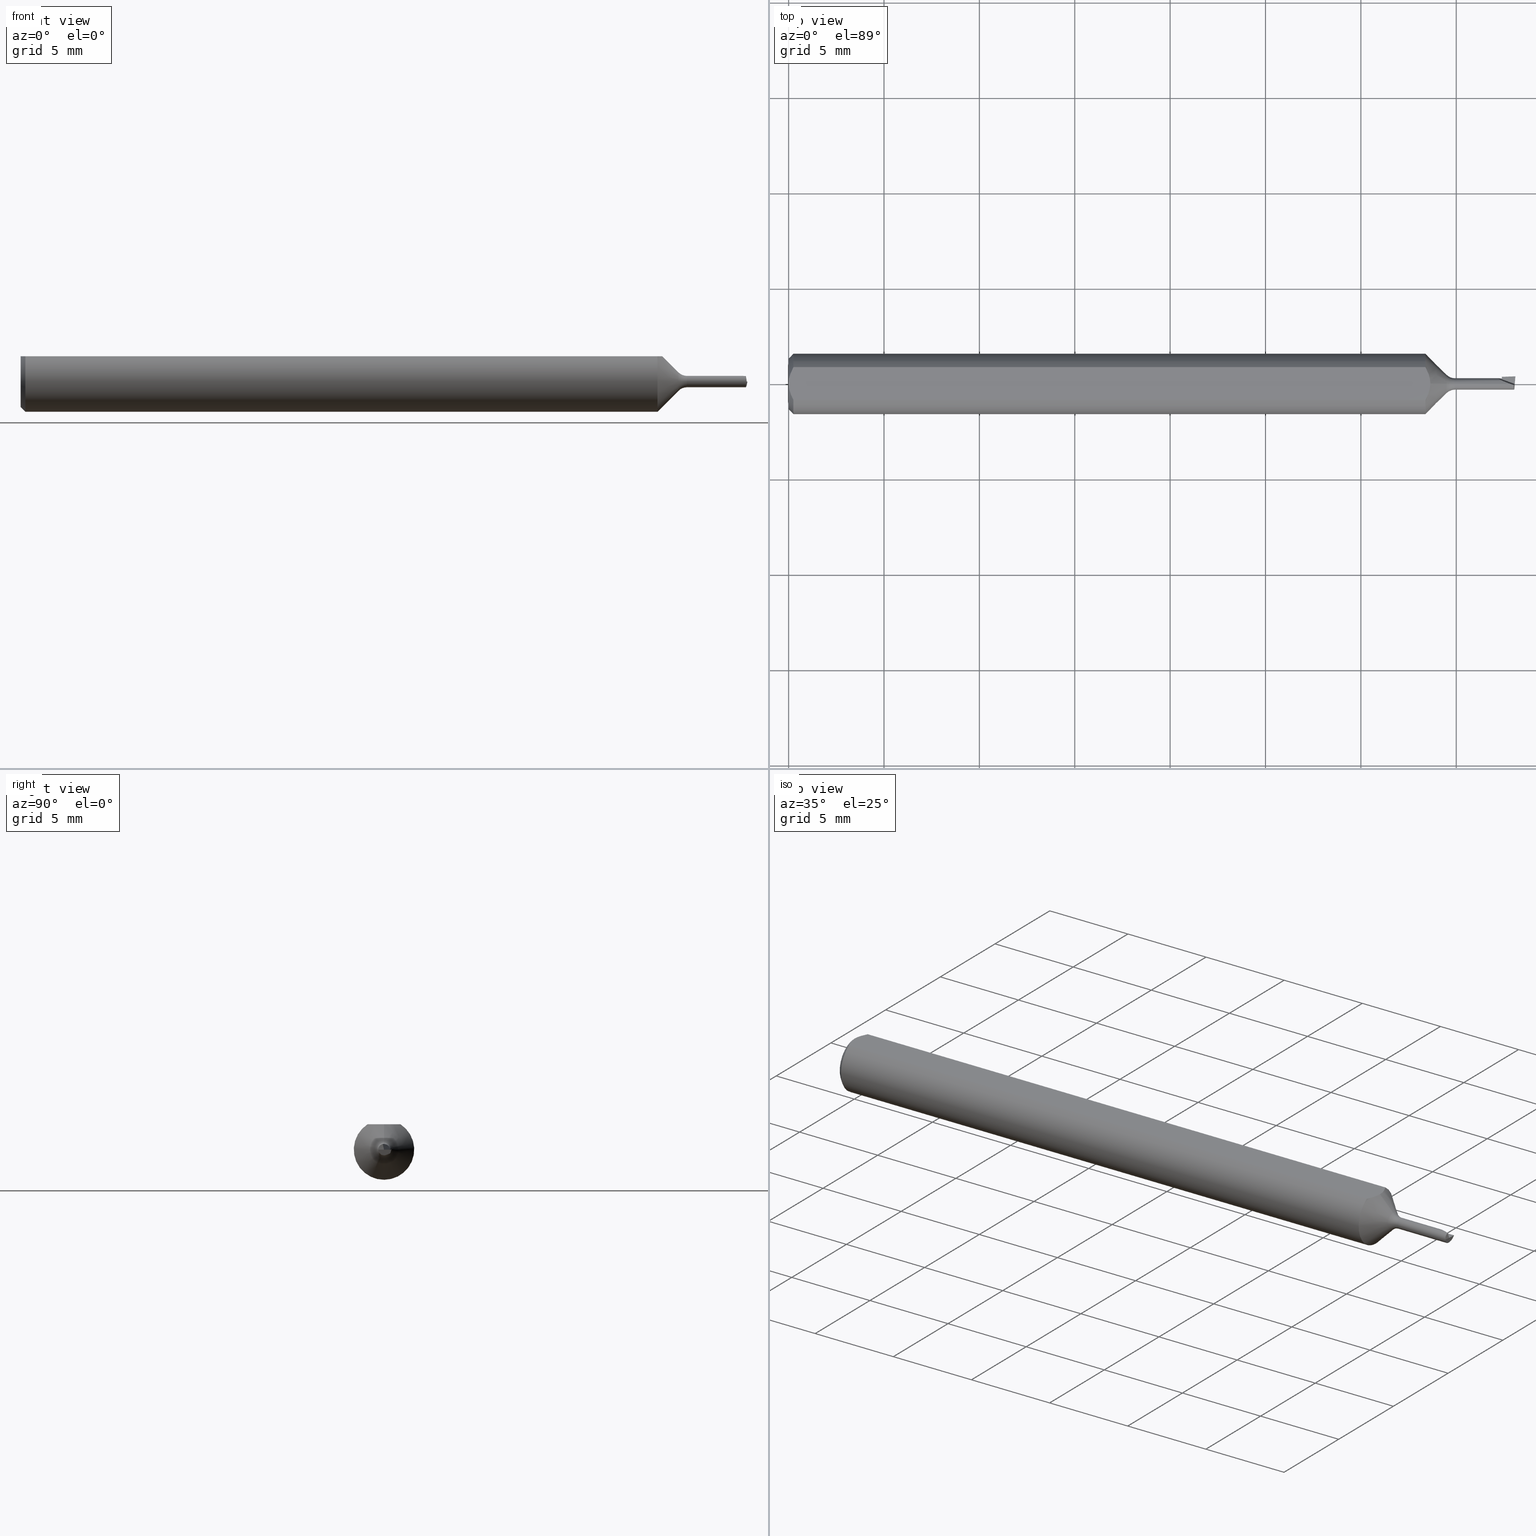
[diagram: canonical four-view strip — front | top / right | iso, engineering-drawing reading convention]
A machine part, canonical four-view strip (front | top / right | iso — engineering-drawing reading convention). The complete STEP part file that produces these views, byte-faithful:
ISO-10303-21;
HEADER;
FILE_DESCRIPTION (( 'STEP AP203' ),
    '1' );
FILE_NAME ('210016-MB030125.STEP',
    '2025-01-29T00:08:43',
    ( '' ),
    ( '' ),
    'SwSTEP 2.0',
    'SolidWorks 2024',
    '' );
FILE_SCHEMA (( 'CONFIG_CONTROL_DESIGN' ));
ENDSEC;

DATA;
#1 = FACE_OUTER_BOUND ( 'NONE', #407, .T. ) ;
#2 = EDGE_CURVE ( 'NONE', #664, #94, #166, .T. ) ;
#3 = PRODUCT_DEFINITION_SHAPE ( 'NONE', 'NONE',  #570 ) ;
#4 = DIRECTION ( 'NONE',  ( 0.000000000000000000, -1.224646799147353454E-16, 1.000000000000000000 ) ) ;
#5 = CARTESIAN_POINT ( 'NONE',  ( 1.490575711937203396, 0.01980815216079209046, 0.06931876481191066863 ) ) ;
#6 = PRODUCT_RELATED_PRODUCT_CATEGORY ( 'detail', '', ( #122 ) ) ;
#7 = CIRCLE ( 'NONE', #82, 0.05235000000000033377 ) ;
#8 = FACE_OUTER_BOUND ( 'NONE', #519, .T. ) ;
#9 = DIRECTION ( 'NONE',  ( 0.000000000000000000, 0.000000000000000000, 1.000000000000000000 ) ) ;
#10 = AXIS2_PLACEMENT_3D ( 'NONE', #679, #81, #257 ) ;
#11 = DIRECTION ( 'NONE',  ( 0.000000000000000000, -0.4696946100460751561, -0.8828289603845499434 ) ) ;
#12 = CONICAL_SURFACE ( 'NONE', #39, 0.01575000000000000011, 0.03490658503988727790 ) ;
#13 = ORIENTED_EDGE ( 'NONE', *, *, #222, .F. ) ;
#14 = LINE ( 'NONE', #175, #454 ) ;
#15 = DIRECTION ( 'NONE',  ( 1.000000000000000000, 0.000000000000000000, 0.000000000000000000 ) ) ;
#16 = ORIENTED_EDGE ( 'NONE', *, *, #588, .F. ) ;
#17 = EDGE_CURVE ( 'NONE', #702, #86, #183, .T. ) ;
#18 = LINE ( 'NONE', #247, #237 ) ;
#19 = CARTESIAN_POINT ( 'NONE',  ( 1.471999999999999975, 0.01243179049922037323, -0.007979287126242436481 ) ) ;
#20 = DIRECTION ( 'NONE',  ( 0.000000000000000000, 0.000000000000000000, 1.000000000000000000 ) ) ;
#21 = ORIENTED_EDGE ( 'NONE', *, *, #60, .F. ) ;
#22 = AXIS2_PLACEMENT_3D ( 'NONE', #391, #62, #600 ) ;
#23 = ORIENTED_EDGE ( 'NONE', *, *, #663, .F. ) ;
#24 = DIRECTION ( 'NONE',  ( -1.000000000000000000, -0.000000000000000000, -0.000000000000000000 ) ) ;
#25 = CARTESIAN_POINT ( 'NONE',  ( 0.000000000000000000, 0.000000000000000000, -0.05235000000000033377 ) ) ;
#26 = EDGE_LOOP ( 'NONE', ( #695, #618, #375, #577 ) ) ;
#27 = VERTEX_POINT ( 'NONE', #593 ) ;
#28 = EDGE_CURVE ( 'NONE', #569, #534, #504, .T. ) ;
#29 = CARTESIAN_POINT ( 'NONE',  ( 1.405866128605382182, 0.03374975395375072462, -1.971521742098239966E-18 ) ) ;
#30 = FACE_OUTER_BOUND ( 'NONE', #365, .T. ) ;
#31 = ORIENTED_EDGE ( 'NONE', *, *, #471, .F. ) ;
#32 = VERTEX_POINT ( 'NONE', #429 ) ;
#33 = DIRECTION ( 'NONE',  ( 0.000000000000000000, 0.000000000000000000, 1.000000000000000000 ) ) ;
#34 = CARTESIAN_POINT ( 'NONE',  ( 0.001055043921644571291, -0.01186408073217194367, 0.05235000000000002152 ) ) ;
#35 = ORIENTED_EDGE ( 'NONE', *, *, #345, .F. ) ;
#36 = VERTEX_POINT ( 'NONE', #699 ) ;
#37 = ORIENTED_EDGE ( 'NONE', *, *, #85, .F. ) ;
#38 = ORIENTED_EDGE ( 'NONE', *, *, #448, .T. ) ;
#39 = AXIS2_PLACEMENT_3D ( 'NONE', #675, #244, #151 ) ;
#40 = CARTESIAN_POINT ( 'NONE',  ( 1.499059002187673517, 0.01305697197173264455, -0.004999999999999995767 ) ) ;
#41 = PERSON_AND_ORGANIZATION ( #171, #293 ) ;
#42 = AXIS2_PLACEMENT_3D ( 'NONE', #457, #402, #400 ) ;
#43 = CARTESIAN_POINT ( 'NONE',  ( 1.496777660844192948, -0.002606333657024755956, 0.01145729134081262604 ) ) ;
#44 = PERSON_AND_ORGANIZATION_ROLE ( 'creator' ) ;
#45 = CARTESIAN_POINT ( 'NONE',  ( 1.472017056843465399, 0.01477281409233033478, -1.010624672576561083E-19 ) ) ;
#46 = AXIS2_PLACEMENT_3D ( 'NONE', #693, #530, #423 ) ;
#47 = VECTOR ( 'NONE', #224, 39.37007874015748854 ) ;
#48 = CARTESIAN_POINT ( 'NONE',  ( 1.472279564697646537, 0.007255572691233664988, -0.009863276334428213235 ) ) ;
#49 = AXIS2_PLACEMENT_3D ( 'NONE', #306, #531, #20 ) ;
#50 = EDGE_CURVE ( 'NONE', #27, #193, #361, .T. ) ;
#51 = LOCAL_TIME ( 16, 8, 43.00000000000000000, #535 ) ;
#52 = APPROVAL_ROLE ( '' ) ;
#53 = ORIENTED_EDGE ( 'NONE', *, *, #271, .F. ) ;
#54 = DIRECTION ( 'NONE',  ( -1.000000000000000000, -0.000000000000000000, -0.000000000000000000 ) ) ;
#55 = CARTESIAN_POINT ( 'NONE',  ( 1.489387500928224917, 0.000000000000000000, 0.01175000000000000176 ) ) ;
#56 = CARTESIAN_POINT ( 'NONE',  ( 1.375355339059327386, 0.000000000000000000, 0.03675000000000000488 ) ) ;
#57 = AXIS2_PLACEMENT_3D ( 'NONE', #117, #556, #67 ) ;
#58 = LINE ( 'NONE', #283, #435 ) ;
#59 = DIRECTION ( 'NONE',  ( 0.9864997997699010979, -0.08630754905050017078, 0.1391731009600657154 ) ) ;
#60 = EDGE_CURVE ( 'NONE', #566, #36, #497, .T. ) ;
#61 = DIRECTION ( 'NONE',  ( 0.000000000000000000, -1.000000000000000000, 0.000000000000000000 ) ) ;
#62 = DIRECTION ( 'NONE',  ( 1.000000000000000000, 0.000000000000000000, 0.000000000000000000 ) ) ;
#63 = CARTESIAN_POINT ( 'NONE',  ( 0.000000000000000000, 0.000000000000000000, 0.01175000000000000176 ) ) ;
#64 = APPROVAL ( #387, 'UNSPECIFIED' ) ;
#65 = CARTESIAN_POINT ( 'NONE',  ( 0.01000000000000839627, -0.03386738844395137393, 0.05235000000000001458 ) ) ;
#66 = DIRECTION ( 'NONE',  ( 0.000000000000000000, -0.7073221891495861113, -0.7068913075831653181 ) ) ;
#67 = DIRECTION ( 'NONE',  ( 0.000000000000000000, 0.000000000000000000, -1.000000000000000000 ) ) ;
#68 = LINE ( 'NONE', #653, #487 ) ;
#69 = EDGE_LOOP ( 'NONE', ( #582, #420, #380, #614 ) ) ;
#70 = EDGE_CURVE ( 'NONE', #32, #445, #228, .T. ) ;
#71 = DIRECTION ( 'NONE',  ( 0.9396926207859126468, -0.3420201433256567780, 0.000000000000000000 ) ) ;
#72 = FACE_OUTER_BOUND ( 'NONE', #415, .T. ) ;
#73 = CC_DESIGN_APPROVAL ( #300, ( #596 ) ) ;
#74 = VERTEX_POINT ( 'NONE', #43 ) ;
#75 = LINE ( 'NONE', #133, #282 ) ;
#76 =( NAMED_UNIT ( * ) SI_UNIT ( $, .STERADIAN. ) SOLID_ANGLE_UNIT ( ) );
#77 = EDGE_CURVE ( 'NONE', #245, #98, #179, .T. ) ;
#78 = ORIENTED_EDGE ( 'NONE', *, *, #322, .F. ) ;
#79 = ORIENTED_EDGE ( 'NONE', *, *, #540, .F. ) ;
#80 = CARTESIAN_POINT ( 'NONE',  ( 1.498269172269733440, 0.009583069287954916471, -0.008444221809507816701 ) ) ;
#81 = DIRECTION ( 'NONE',  ( -0.9993908270190957621, -0.03489949670249904018, 0.000000000000000000 ) ) ;
#82 = AXIS2_PLACEMENT_3D ( 'NONE', #268, #54, #433 ) ;
#83 = EDGE_LOOP ( 'NONE', ( #350, #197, #681, #35, #205, #53, #263 ) ) ;
#84 = VECTOR ( 'NONE', #270, 39.37007874015748143 ) ;
#85 = EDGE_CURVE ( 'NONE', #74, #36, #182, .T. ) ;
#86 = VERTEX_POINT ( 'NONE', #379 ) ;
#87 = CARTESIAN_POINT ( 'NONE',  ( 1.357677669529663733, 0.000000000000000000, 0.000000000000000000 ) ) ;
#88 = PERSON_AND_ORGANIZATION ( #171, #293 ) ;
#89 = ORIENTED_EDGE ( 'NONE', *, *, #547, .F. ) ;
#90 = ORIENTED_EDGE ( 'NONE', *, *, #448, .F. ) ;
#91 = DIRECTION ( 'NONE',  ( 1.000000000000000000, 0.000000000000000000, 0.000000000000000000 ) ) ;
#92 = CARTESIAN_POINT ( 'NONE',  ( 1.496362207182281079, -0.006882990642116395066, -0.01175000000000001737 ) ) ;
#93 = ORIENTED_EDGE ( 'NONE', *, *, #692, .T. ) ;
#94 = VERTEX_POINT ( 'NONE', #490 ) ;
#95 = EDGE_CURVE ( 'NONE', #98, #86, #436, .T. ) ;
#96 = CARTESIAN_POINT ( 'NONE',  ( 0.000000000000000000, 0.03386738844375218604, 0.05235000000000001458 ) ) ;
#97 = DIRECTION ( 'NONE',  ( -1.000000000000000000, 0.000000000000000000, 0.000000000000000000 ) ) ;
#98 = VERTEX_POINT ( 'NONE', #590 ) ;
#99 = VECTOR ( 'NONE', #572, 39.37007874015748854 ) ;
#100 = VERTEX_POINT ( 'NONE', #48 ) ;
#101 = DIRECTION ( 'NONE',  ( 0.000000000000000000, 0.000000000000000000, 1.000000000000000000 ) ) ;
#102 = EDGE_CURVE ( 'NONE', #566, #74, #275, .T. ) ;
#103 = DIRECTION ( 'NONE',  ( -1.000000000000000000, -0.000000000000000000, -0.000000000000000000 ) ) ;
#104 = DIRECTION ( 'NONE',  ( 0.000000000000000000, 0.000000000000000000, -1.000000000000000000 ) ) ;
#105 = ORIENTED_EDGE ( 'NONE', *, *, #218, .T. ) ;
#106 = PERSON_AND_ORGANIZATION ( #171, #293 ) ;
#107 = CARTESIAN_POINT ( 'NONE',  ( 0.000000000000000000, 0.000000000000000000, -0.05235000000000033377 ) ) ;
#108 = CARTESIAN_POINT ( 'NONE',  ( 1.471999999999999975, 0.01175000000000000176, 0.000000000000000000 ) ) ;
#109 = CARTESIAN_POINT ( 'NONE',  ( 1.323328875033864538, 0.01191462272770363318, 0.05235000000000001458 ) ) ;
#110 = ADVANCED_FACE ( 'NONE', ( #226 ), #442, .F. ) ;
#111 = AXIS2_PLACEMENT_3D ( 'NONE', #585, #594, #101 ) ;
#112 = PERSON_AND_ORGANIZATION_ROLE ( 'classification_officer' ) ;
#113 = CARTESIAN_POINT ( 'NONE',  ( 1.324399999999999578, 0.005921331895061767055, 0.05235000000000002152 ) ) ;
#114 = AXIS2_PLACEMENT_3D ( 'NONE', #666, #202, #463 ) ;
#115 =( GEOMETRIC_REPRESENTATION_CONTEXT ( 3 ) GLOBAL_UNCERTAINTY_ASSIGNED_CONTEXT ( ( #369 ) ) GLOBAL_UNIT_ASSIGNED_CONTEXT ( ( #573, #353, #76 ) ) REPRESENTATION_CONTEXT ( 'NONE', 'WORKASPACE' ) );
#116 = COORDINATED_UNIVERSAL_TIME_OFFSET ( 8, 0, .BEHIND. ) ;
#117 = CARTESIAN_POINT ( 'NONE',  ( 0.009999999999999887451, 0.000000000000000000, 0.000000000000000000 ) ) ;
#118 = EDGE_CURVE ( 'NONE', #677, #445, #119, .T. ) ;
#119 = LINE ( 'NONE', #604, #633 ) ;
#120 = LINE ( 'NONE', #688, #395 ) ;
#121 = DIRECTION ( 'NONE',  ( -0.000000000000000000, 1.000000000000000000, 1.224646799147353207E-16 ) ) ;
#122 = PRODUCT ( '210016-MB030125', '210016-MB030125', '', ( #568 ) ) ;
#123 = DIRECTION ( 'NONE',  ( 0.000000000000000000, 1.000000000000000000, 1.150753554054431840E-16 ) ) ;
#124 = B_SPLINE_CURVE_WITH_KNOTS ( 'NONE', 3,
 ( #452, #278, #241, #346, #499, #233 ),
 .UNSPECIFIED., .F., .F.,
 ( 4, 2, 4 ),
 ( 0.0009229516234078819371, 0.001371626545108044562, 0.001820301466808206970 ),
 .UNSPECIFIED. ) ;
#125 = FACE_OUTER_BOUND ( 'NONE', #627, .T. ) ;
#126 = PLANE ( 'NONE',  #396 ) ;
#127 = CARTESIAN_POINT ( 'NONE',  ( 1.357677669529663733, 2.335686846277793492E-18, -0.01907233047033634471 ) ) ;
#128 = CARTESIAN_POINT ( 'NONE',  ( 1.498621151246821936, -1.031336641993916436E-05, 6.153830309977643872E-16 ) ) ;
#129 = ADVANCED_FACE ( 'NONE', ( #449 ), #126, .F. ) ;
#130 = AXIS2_PLACEMENT_3D ( 'NONE', #510, #405, #33 ) ;
#131 = FACE_OUTER_BOUND ( 'NONE', #479, .T. ) ;
#132 = DIRECTION ( 'NONE',  ( -1.000000000000000000, -0.000000000000000000, -0.000000000000000000 ) ) ;
#133 = CARTESIAN_POINT ( 'NONE',  ( 0.000000000000000000, 1.438959988998140299E-18, -0.01175000000000000176 ) ) ;
#134 = ORIENTED_EDGE ( 'NONE', *, *, #2, .T. ) ;
#135 = ORIENTED_EDGE ( 'NONE', *, *, #386, .F. ) ;
#136 = DIRECTION ( 'NONE',  ( 0.000000000000000000, 0.000000000000000000, 1.000000000000000000 ) ) ;
#137 = APPLICATION_PROTOCOL_DEFINITION ( 'international standard', 'config_control_design', 1994, #281 ) ;
#138 = EDGE_CURVE ( 'NONE', #208, #94, #340, .T. ) ;
#139 = ORIENTED_EDGE ( 'NONE', *, *, #28, .T. ) ;
#140 = CARTESIAN_POINT ( 'NONE',  ( 1.471999999999999975, 0.01477221845423104009, -1.385417046086357008E-18 ) ) ;
#141 = CARTESIAN_POINT ( 'NONE',  ( 0.004679365186825696840, -0.02325953974091124130, 0.05235000000000001458 ) ) ;
#142 = AXIS2_PLACEMENT_3D ( 'NONE', #620, #305, #616 ) ;
#143 = ORIENTED_EDGE ( 'NONE', *, *, #50, .T. ) ;
#144 = APPROVAL ( #493, 'UNSPECIFIED' ) ;
#145 = VERTEX_POINT ( 'NONE', #549 ) ;
#146 = FACE_OUTER_BOUND ( 'NONE', #200, .T. ) ;
#147 = CARTESIAN_POINT ( 'NONE',  ( 0.000000000000000000, 0.000000000000000000, 0.000000000000000000 ) ) ;
#148 = VERTEX_POINT ( 'NONE', #652 ) ;
#149 = CC_DESIGN_APPROVAL ( #144, ( #210 ) ) ;
#150 = CYLINDRICAL_SURFACE ( 'NONE', #46, 0.01175000000000000176 ) ;
#151 = DIRECTION ( 'NONE',  ( 0.000000000000000000, 0.000000000000000000, -1.000000000000000000 ) ) ;
#152 = VERTEX_POINT ( 'NONE', #180 ) ;
#153 = ORIENTED_EDGE ( 'NONE', *, *, #209, .T. ) ;
#154 = EDGE_CURVE ( 'NONE', #245, #628, #341, .T. ) ;
#155 = FACE_OUTER_BOUND ( 'NONE', #83, .T. ) ;
#156 = CARTESIAN_POINT ( 'NONE',  ( 1.496787257984711239, -0.01174999999999975717, 0.005718861981345452379 ) ) ;
#157 = CIRCLE ( 'NONE', #584, 0.06235000000000000264 ) ;
#158 = ORIENTED_EDGE ( 'NONE', *, *, #295, .F. ) ;
#159 = AXIS2_PLACEMENT_3D ( 'NONE', #690, #103, #545 ) ;
#160 = DATE_TIME_ROLE ( 'creation_date' ) ;
#161 = CARTESIAN_POINT ( 'NONE',  ( 1.317245553868476193, 0.02862871218756115124, 0.05235000000000002152 ) ) ;
#162 = CARTESIAN_POINT ( 'NONE',  ( 1.497415954030127283, 0.004018736684076542123, -0.01104138829423444677 ) ) ;
#163 = DIRECTION ( 'NONE',  ( -0.7071067811865469066, 0.000000000000000000, 0.7071067811865480168 ) ) ;
#164 = ADVANCED_FACE ( 'NONE', ( #8 ), #520, .T. ) ;
#165 = APPLICATION_PROTOCOL_DEFINITION ( 'international standard', 'config_control_design', 1994, #546 ) ;
#166 = LINE ( 'NONE', #107, #84 ) ;
#167 = EDGE_CURVE ( 'NONE', #569, #32, #337, .T. ) ;
#168 = APPROVAL_DATE_TIME ( #443, #300 ) ;
#169 = ORIENTED_EDGE ( 'NONE', *, *, #634, .T. ) ;
#170 = EDGE_CURVE ( 'NONE', #245, #193, #658, .T. ) ;
#171 = PERSON ( 'UNSPECIFIED', 'UNSPECIFIED', 'UNSPECIFIED', ('UNSPECIFIED'), ('UNSPECIFIED'), ('UNSPECIFIED') ) ;
#172 = CC_DESIGN_SECURITY_CLASSIFICATION ( #596, ( #210 ) ) ;
#173 = CARTESIAN_POINT ( 'NONE',  ( 1.472017056843465399, 0.01477281409233033478, -1.010624672576561083E-19 ) ) ;
#174 = DIRECTION ( 'NONE',  ( 0.1396943646708928011, 0.000000000000000000, -0.9901946699913082295 ) ) ;
#175 = CARTESIAN_POINT ( 'NONE',  ( 1.498466715238065072, 0.01158705912964403187, -0.008286744200719139627 ) ) ;
#176 = DIRECTION ( 'NONE',  ( 0.000000000000000000, 0.000000000000000000, 1.000000000000000000 ) ) ;
#177 = CARTESIAN_POINT ( 'NONE',  ( 1.411539978888987745, 0.04933852948932382354, 6.000571133729248059E-20 ) ) ;
#178 = CIRCLE ( 'NONE', #417, 0.02500000000000000486 ) ;
#179 = CIRCLE ( 'NONE', #551, 0.01907233047033634471 ) ;
#180 = CARTESIAN_POINT ( 'NONE',  ( 1.466309955826872624, 0.01174999999999995839, -1.971521742098239966E-18 ) ) ;
#181 = CARTESIAN_POINT ( 'NONE',  ( 1.048979010794088174, 2.393929668799700213E-33, -2.080314816639240730E-17 ) ) ;
#182 =( BOUNDED_CURVE ( )  B_SPLINE_CURVE ( 3, ( #220, #439, #156, #629 ),
 .UNSPECIFIED., .F., .F. ) 
 B_SPLINE_CURVE_WITH_KNOTS ( ( 4, 4 ),
 ( 5.951760700708848439, 7.298880934359301520 ),
 .UNSPECIFIED. ) 
 CURVE ( )  GEOMETRIC_REPRESENTATION_ITEM ( )  RATIONAL_B_SPLINE_CURVE ( ( 1.000000000000000000, 0.8544039470989037710, 0.8544039470989037710, 1.000000000000000000 ) ) 
 REPRESENTATION_ITEM ( '' )  );
#183 = B_SPLINE_CURVE_WITH_KNOTS ( 'NONE', 3,
 ( #645, #161, #542, #109, #113, #539 ),
 .UNSPECIFIED., .F., .F.,
 ( 4, 2, 4 ),
 ( 0.002138043958543064428, 0.002587078562153630537, 0.003036113165764197080 ),
 .UNSPECIFIED. ) ;
#184 = DIRECTION ( 'NONE',  ( 1.000000000000000000, 0.000000000000000000, 0.000000000000000000 ) ) ;
#185 = EDGE_CURVE ( 'NONE', #152, #667, #58, .T. ) ;
#186 = CARTESIAN_POINT ( 'NONE',  ( 1.375355339059327386, 4.500576986866523856E-18, -0.03675000000000000488 ) ) ;
#187 = CC_DESIGN_DATE_AND_TIME_ASSIGNMENT ( #438, #160, ( #570 ) ) ;
#188 = ORIENTED_EDGE ( 'NONE', *, *, #579, .F. ) ;
#189 = AXIS2_PLACEMENT_3D ( 'NONE', #670, #206, #562 ) ;
#190 = DIRECTION ( 'NONE',  ( -0.03279713600599139245, 0.9391870936218524868, 0.3418361464853330034 ) ) ;
#191 = EDGE_LOOP ( 'NONE', ( #262, #412, #188, #625, #211 ) ) ;
#192 = DIRECTION ( 'NONE',  ( -1.000000000000000000, -0.000000000000000000, -0.000000000000000000 ) ) ;
#193 = VERTEX_POINT ( 'NONE', #459 ) ;
#194 = EDGE_CURVE ( 'NONE', #667, #327, #548, .T. ) ;
#195 = CARTESIAN_POINT ( 'NONE',  ( 1.319734733031429741, -0.02321402113692512537, 0.05235000000000001458 ) ) ;
#196 = ORIENTED_EDGE ( 'NONE', *, *, #414, .T. ) ;
#197 = ORIENTED_EDGE ( 'NONE', *, *, #60, .T. ) ;
#198 = PLANE ( 'NONE',  #622 ) ;
#199 = ORIENTED_EDGE ( 'NONE', *, *, #651, .T. ) ;
#200 = EDGE_LOOP ( 'NONE', ( #382, #329 ) ) ;
#201 = CARTESIAN_POINT ( 'NONE',  ( 1.471999999999999975, 0.01243179049922037323, -0.007979287126242436481 ) ) ;
#202 = DIRECTION ( 'NONE',  ( -1.000000000000000000, -0.000000000000000000, -0.000000000000000000 ) ) ;
#203 = CONICAL_SURFACE ( 'NONE', #142, 0.01907233047033634471, 0.7853981633974490562 ) ;
#204 = ORIENTED_EDGE ( 'NONE', *, *, #547, .T. ) ;
#205 = ORIENTED_EDGE ( 'NONE', *, *, #386, .T. ) ;
#206 = DIRECTION ( 'NONE',  ( -1.000000000000000000, -0.000000000000000000, -0.000000000000000000 ) ) ;
#207 = CARTESIAN_POINT ( 'NONE',  ( 1.472017056843465399, 0.01477281409233033478, -1.010624672576561083E-19 ) ) ;
#208 = VERTEX_POINT ( 'NONE', #65 ) ;
#209 = EDGE_CURVE ( 'NONE', #74, #630, #430, .T. ) ;
#210 = PRODUCT_DEFINITION_FORMATION_WITH_SPECIFIED_SOURCE ( 'ANY', '', #122, .NOT_KNOWN. ) ;
#211 = ORIENTED_EDGE ( 'NONE', *, *, #95, .F. ) ;
#212 = AXIS2_PLACEMENT_3D ( 'NONE', #640, #495, #66 ) ;
#213 = CYLINDRICAL_SURFACE ( 'NONE', #111, 0.01175000000000000176 ) ;
#214 = DATE_AND_TIME ( #276, #51 ) ;
#215 = CARTESIAN_POINT ( 'NONE',  ( 1.500296196177056229, 0.01913553779562354729, 7.512581982576723358E-16 ) ) ;
#216 = DIMENSIONAL_EXPONENTS ( 1.000000000000000000, 0.000000000000000000, 0.000000000000000000, 0.000000000000000000, 0.000000000000000000, 0.000000000000000000, 0.000000000000000000 ) ;
#217 = ORIENTED_EDGE ( 'NONE', *, *, #271, .T. ) ;
#218 = EDGE_CURVE ( 'NONE', #145, #425, #124, .T. ) ;
#219 = PERSON_AND_ORGANIZATION_ROLE ( 'design_supplier' ) ;
#220 = CARTESIAN_POINT ( 'NONE',  ( 1.496777660844192948, -0.002606333657024755956, 0.01145729134081262604 ) ) ;
#221 = VECTOR ( 'NONE', #533, 39.37007874015748854 ) ;
#222 = EDGE_CURVE ( 'NONE', #475, #100, #661, .T. ) ;
#223 = CALENDAR_DATE ( 2025, 28, 1 ) ;
#224 = DIRECTION ( 'NONE',  ( -0.08715574274767851071, -0.9961946980917436578, -4.951391842429790041E-15 ) ) ;
#225 = APPROVAL_DATE_TIME ( #644, #144 ) ;
#226 = FACE_OUTER_BOUND ( 'NONE', #514, .T. ) ;
#227 = CALENDAR_DATE ( 2025, 28, 1 ) ;
#228 = LINE ( 'NONE', #316, #221 ) ;
#229 = ADVANCED_FACE ( 'NONE', ( #656 ), #659, .T. ) ;
#230 = VECTOR ( 'NONE', #285, 39.37007874015748854 ) ;
#231 = FACE_OUTER_BOUND ( 'NONE', #69, .T. ) ;
#232 = TOROIDAL_SURFACE ( 'NONE', #42, 0.03675000000000000488, 0.02500000000000000486 ) ;
#233 = CARTESIAN_POINT ( 'NONE',  ( 0.000000000000000000, 0.000000000000000000, 0.05235000000000033377 ) ) ;
#234 = DIRECTION ( 'NONE',  ( -1.000000000000000000, -0.000000000000000000, -0.000000000000000000 ) ) ;
#235 = DIRECTION ( 'NONE',  ( -1.000000000000000000, -0.000000000000000000, -0.000000000000000000 ) ) ;
#236 = DIRECTION ( 'NONE',  ( 4.188400406518400290E-17, 1.150753554054431840E-16, -1.000000000000000000 ) ) ;
#237 = VECTOR ( 'NONE', #192, 39.37007874015748143 ) ;
#238 = ADVANCED_FACE ( 'NONE', ( #231 ), #609, .T. ) ;
#239 = CARTESIAN_POINT ( 'NONE',  ( 1.314400000000000013, 0.000000000000000000, 0.000000000000000000 ) ) ;
#240 = AXIS2_PLACEMENT_3D ( 'NONE', #147, #411, #617 ) ;
#241 = CARTESIAN_POINT ( 'NONE',  ( 0.004671770759546766197, 0.02323517832780104542, 0.05235000000000002152 ) ) ;
#242 = PLANE ( 'NONE',  #650 ) ;
#243 = CARTESIAN_POINT ( 'NONE',  ( 1.324400000000000022, -1.923771709464471706E-20, 0.05235000000000001458 ) ) ;
#244 = DIRECTION ( 'NONE',  ( 1.000000000000000000, 0.000000000000000000, 0.000000000000000000 ) ) ;
#245 = VERTEX_POINT ( 'NONE', #127 ) ;
#246 = EDGE_CURVE ( 'NONE', #94, #145, #315, .T. ) ;
#247 = CARTESIAN_POINT ( 'NONE',  ( 0.000000000000000000, -0.03386738844375218604, 0.05235000000000001458 ) ) ;
#248 = DIRECTION ( 'NONE',  ( -1.000000000000000000, -0.000000000000000000, -0.000000000000000000 ) ) ;
#249 = VECTOR ( 'NONE', #163, 39.37007874015748854 ) ;
#250 = ORIENTED_EDGE ( 'NONE', *, *, #392, .F. ) ;
#251 = CC_DESIGN_PERSON_AND_ORGANIZATION_ASSIGNMENT ( #41, #219, ( #210 ) ) ;
#252 = CARTESIAN_POINT ( 'NONE',  ( 1.496964390834621961, 1.438959988998140299E-18, -0.01175000000000000176 ) ) ;
#253 = FACE_OUTER_BOUND ( 'NONE', #26, .T. ) ;
#254 = ORIENTED_EDGE ( 'NONE', *, *, #17, .F. ) ;
#255 =( BOUNDED_CURVE ( )  B_SPLINE_CURVE ( 3, ( #660, #603, #349, #601 ),
 .UNSPECIFIED., .F., .T. ) 
 B_SPLINE_CURVE_WITH_KNOTS ( ( 4, 4 ),
 ( 4.990162771046300350, 6.560959097841200460 ),
 .UNSPECIFIED. ) 
 CURVE ( )  GEOMETRIC_REPRESENTATION_ITEM ( )  RATIONAL_B_SPLINE_CURVE ( ( 1.000000000000000000, 0.8047378541243641603, 0.8047378541243641603, 1.000000000000000000 ) ) 
 REPRESENTATION_ITEM ( '' )  );
#256 = CARTESIAN_POINT ( 'NONE',  ( 1.472109838801249904, 0.01211588644912026461, -0.004999999999999995767 ) ) ;
#257 = DIRECTION ( 'NONE',  ( 0.03489949670249904018, -0.9993908270190957621, 0.000000000000000000 ) ) ;
#258 = ORIENTED_EDGE ( 'NONE', *, *, #261, .F. ) ;
#259 = CARTESIAN_POINT ( 'NONE',  ( 1.472487048364008011, 0.001314017869244487593, -0.01202582543489305600 ) ) ;
#260 = CARTESIAN_POINT ( 'NONE',  ( 0.007163450771416175755, -0.02864528976632487248, 0.05235000000000002152 ) ) ;
#261 = EDGE_CURVE ( 'NONE', #193, #27, #339, .T. ) ;
#262 = ORIENTED_EDGE ( 'NONE', *, *, #265, .T. ) ;
#263 = ORIENTED_EDGE ( 'NONE', *, *, #118, .F. ) ;
#264 = CARTESIAN_POINT ( 'NONE',  ( 1.357677669529663733, 0.000000000000000000, 0.000000000000000000 ) ) ;
#265 = EDGE_CURVE ( 'NONE', #98, #245, #403, .T. ) ;
#266 = ORIENTED_EDGE ( 'NONE', *, *, #336, .T. ) ;
#267 = AXIS2_PLACEMENT_3D ( 'NONE', #108, #279, #104 ) ;
#268 = CARTESIAN_POINT ( 'NONE',  ( 0.000000000000000000, 0.000000000000000000, 0.000000000000000000 ) ) ;
#269 = SECURITY_CLASSIFICATION_LEVEL ( 'unclassified' ) ;
#270 = DIRECTION ( 'NONE',  ( 0.7071067811865550112, 0.000000000000000000, -0.7071067811865400232 ) ) ;
#271 = EDGE_CURVE ( 'NONE', #445, #475, #309, .T. ) ;
#272 = CARTESIAN_POINT ( 'NONE',  ( 1.472098620760154741, 0.01243712911527014402, -0.007977344028908142301 ) ) ;
#273 = VECTOR ( 'NONE', #643, 39.37007874015748143 ) ;
#274 = VECTOR ( 'NONE', #700, 39.37007874015749564 ) ;
#275 = LINE ( 'NONE', #494, #274 ) ;
#276 = CALENDAR_DATE ( 2025, 28, 1 ) ;
#277 = ORIENTED_EDGE ( 'NONE', *, *, #194, .T. ) ;
#278 = CARTESIAN_POINT ( 'NONE',  ( 0.007185421074056197802, 0.02868573718286559354, 0.05235000000000002152 ) ) ;
#279 = DIRECTION ( 'NONE',  ( 1.000000000000000000, 0.000000000000000000, 0.000000000000000000 ) ) ;
#280 = EDGE_CURVE ( 'NONE', #370, #534, #502, .T. ) ;
#281 = APPLICATION_CONTEXT ( 'configuration controlled 3d designs of mechanical parts and assemblies' ) ;
#282 = VECTOR ( 'NONE', #348, 39.37007874015748143 ) ;
#283 = CARTESIAN_POINT ( 'NONE',  ( 2.711511338202255798E-33, 0.01175000000000000176, -6.338645389277073672E-17 ) ) ;
#284 = DIRECTION ( 'NONE',  ( 0.000000000000000000, 0.000000000000000000, -1.000000000000000000 ) ) ;
#285 = DIRECTION ( 'NONE',  ( -0.9982962607160562607, -0.05482988347611510160, -0.01995644553358981096 ) ) ;
#286 = CARTESIAN_POINT ( 'NONE',  ( 1.471999999999999975, 0.000000000000000000, 0.000000000000000000 ) ) ;
#287 = EDGE_CURVE ( 'NONE', #667, #310, #498, .T. ) ;
#288 = DIRECTION ( 'NONE',  ( 0.000000000000000000, 0.9396926207859103153, 0.3420201433256630508 ) ) ;
#289 = AXIS2_PLACEMENT_3D ( 'NONE', #410, #248, #136 ) ;
#290 = DIRECTION ( 'NONE',  ( 1.000000000000000000, 0.000000000000000000, 0.000000000000000000 ) ) ;
#291 = FACE_OUTER_BOUND ( 'NONE', #636, .T. ) ;
#292 = ORIENTED_EDGE ( 'NONE', *, *, #102, .F. ) ;
#293 = ORGANIZATION ( 'UNSPECIFIED', 'UNSPECIFIED', '' ) ;
#294 = CARTESIAN_POINT ( 'NONE',  ( 1.498622053549466759, 2.267326431501174187E-34, -1.970297135744433327E-18 ) ) ;
#295 = EDGE_CURVE ( 'NONE', #628, #469, #157, .T. ) ;
#296 = AXIS2_PLACEMENT_3D ( 'NONE', #513, #15, #608 ) ;
#297 = ORIENTED_EDGE ( 'NONE', *, *, #70, .F. ) ;
#298 = LINE ( 'NONE', #256, #655 ) ;
#299 = ORIENTED_EDGE ( 'NONE', *, *, #280, .F. ) ;
#300 = APPROVAL ( #328, 'UNSPECIFIED' ) ;
#301 = ORIENTED_EDGE ( 'NONE', *, *, #638, .F. ) ;
#302 = VECTOR ( 'NONE', #678, 39.37007874015748143 ) ;
#303 = CARTESIAN_POINT ( 'NONE',  ( 1.314400000000000013, -0.03386738844375218604, 0.05235000000000001458 ) ) ;
#304 = ORIENTED_EDGE ( 'NONE', *, *, #287, .T. ) ;
#305 = DIRECTION ( 'NONE',  ( -1.000000000000000000, -0.000000000000000000, -0.000000000000000000 ) ) ;
#306 = CARTESIAN_POINT ( 'NONE',  ( 0.000000000000000000, 0.000000000000000000, 0.000000000000000000 ) ) ;
#307 = ORIENTED_EDGE ( 'NONE', *, *, #118, .T. ) ;
#308 = EDGE_CURVE ( 'NONE', #148, #193, #75, .T. ) ;
#309 = LINE ( 'NONE', #80, #99 ) ;
#310 = VERTEX_POINT ( 'NONE', #467 ) ;
#311 = ORIENTED_EDGE ( 'NONE', *, *, #638, .T. ) ;
#312 = ADVANCED_FACE ( 'NONE', ( #526 ), #203, .T. ) ;
#313 = FACE_OUTER_BOUND ( 'NONE', #422, .T. ) ;
#314 = LINE ( 'NONE', #207, #455 ) ;
#315 = CIRCLE ( 'NONE', #57, 0.06235000000000000264 ) ;
#316 = CARTESIAN_POINT ( 'NONE',  ( 1.472109838801249904, 0.01211588644912026461, -0.004999999999999995767 ) ) ;
#317 = EDGE_LOOP ( 'NONE', ( #292, #250, #79, #691 ) ) ;
#318 = CARTESIAN_POINT ( 'NONE',  ( 1.314400000000000013, -0.03386738844375218604, 0.05235000000000001458 ) ) ;
#319 = PERSON_AND_ORGANIZATION_ROLE ( 'design_owner' ) ;
#320 = DIRECTION ( 'NONE',  ( -1.000000000000000000, -0.000000000000000000, -0.000000000000000000 ) ) ;
#321 = FACE_OUTER_BOUND ( 'NONE', #685, .T. ) ;
#322 = EDGE_CURVE ( 'NONE', #100, #534, #352, .T. ) ;
#323 = ORIENTED_EDGE ( 'NONE', *, *, #537, .F. ) ;
#324 = CONICAL_SURFACE ( 'NONE', #296, 0.05235000000000033377, 0.7853981633974376209 ) ;
#325 = ORIENTED_EDGE ( 'NONE', *, *, #663, .T. ) ;
#326 = PERSON_AND_ORGANIZATION ( #171, #293 ) ;
#327 = VERTEX_POINT ( 'NONE', #140 ) ;
#328 = APPROVAL_STATUS ( 'not_yet_approved' ) ;
#329 = ORIENTED_EDGE ( 'NONE', *, *, #404, .T. ) ;
#330 = PLANE ( 'NONE',  #267 ) ;
#331 = AXIS2_PLACEMENT_3D ( 'NONE', #177, #236, #123 ) ;
#332 = EDGE_CURVE ( 'NONE', #32, #100, #298, .T. ) ;
#333 = SHAPE_DEFINITION_REPRESENTATION ( #3, #462 ) ;
#334 = CARTESIAN_POINT ( 'NONE',  ( 1.491799500165699177, -0.0008778959275134780868, 0.01174999999999999482 ) ) ;
#335 = DIRECTION ( 'NONE',  ( 0.1293675338645532413, 0.9317961139776882451, 0.3391460498927898470 ) ) ;
#336 = EDGE_CURVE ( 'NONE', #86, #469, #558, .T. ) ;
#337 = LINE ( 'NONE', #173, #571 ) ;
#338 = FACE_OUTER_BOUND ( 'NONE', #587, .T. ) ;
#339 = CIRCLE ( 'NONE', #130, 0.01175000000000000176 ) ;
#340 = CIRCLE ( 'NONE', #22, 0.06235000000000000264 ) ;
#341 = LINE ( 'NONE', #647, #437 ) ;
#342 = CARTESIAN_POINT ( 'NONE',  ( 1.314400000000000013, 7.635672792683746671E-18, -0.06235000000000000264 ) ) ;
#343 = ADVANCED_FACE ( 'NONE', ( #131 ), #682, .F. ) ;
#344 = CARTESIAN_POINT ( 'NONE',  ( 1.357677669529663733, 0.000000000000000000, 0.000000000000000000 ) ) ;
#345 = EDGE_CURVE ( 'NONE', #517, #148, #564, .T. ) ;
#346 = CARTESIAN_POINT ( 'NONE',  ( 0.001063697276021360232, 0.01189177144351692694, 0.05235000000000001458 ) ) ;
#347 = FACE_OUTER_BOUND ( 'NONE', #466, .T. ) ;
#348 = DIRECTION ( 'NONE',  ( -1.000000000000000000, -0.000000000000000000, -0.000000000000000000 ) ) ;
#349 = CARTESIAN_POINT ( 'NONE',  ( 1.460917607393435569, 0.01175000000000000523, 0.006882990642116147001 ) ) ;
#350 = ORIENTED_EDGE ( 'NONE', *, *, #364, .T. ) ;
#351 = ADVANCED_FACE ( 'NONE', ( #557 ), #198, .F. ) ;
#352 = LINE ( 'NONE', #259, #592 ) ;
#353 =( NAMED_UNIT ( * ) PLANE_ANGLE_UNIT ( ) SI_UNIT ( $, .RADIAN. ) );
#354 = CIRCLE ( 'NONE', #538, 0.01477221845423104182 ) ;
#355 = ORIENTED_EDGE ( 'NONE', *, *, #261, .T. ) ;
#356 = ORIENTED_EDGE ( 'NONE', *, *, #50, .F. ) ;
#357 = DIRECTION ( 'NONE',  ( 0.9993908270190960952, 0.03489949670248750080, -0.000000000000000000 ) ) ;
#358 = ORIENTED_EDGE ( 'NONE', *, *, #471, .T. ) ;
#359 = ORIENTED_EDGE ( 'NONE', *, *, #194, .F. ) ;
#360 = CARTESIAN_POINT ( 'NONE',  ( 1.497084614413562331, 0.001374161795321421180, -0.01175000000000000176 ) ) ;
#361 = CIRCLE ( 'NONE', #159, 0.01175000000000000176 ) ;
#362 = ORIENTED_EDGE ( 'NONE', *, *, #280, .T. ) ;
#363 = VECTOR ( 'NONE', #97, 39.37007874015748143 ) ;
#364 = EDGE_CURVE ( 'NONE', #677, #566, #476, .T. ) ;
#365 = EDGE_LOOP ( 'NONE', ( #676, #575, #358, #383, #485, #38 ) ) ;
#366 = CARTESIAN_POINT ( 'NONE',  ( 0.000000000000000000, 0.000000000000000000, 0.000000000000000000 ) ) ;
#367 = PLANE ( 'NONE',  #10 ) ;
#368 = ORIENTED_EDGE ( 'NONE', *, *, #308, .F. ) ;
#369 = UNCERTAINTY_MEASURE_WITH_UNIT (LENGTH_MEASURE( 1.000000000000000082E-05 ), #573, 'distance_accuracy_value', 'NONE');
#370 = VERTEX_POINT ( 'NONE', #201 ) ;
#371 = CC_DESIGN_PERSON_AND_ORGANIZATION_ASSIGNMENT ( #641, #591, ( #210 ) ) ;
#372 = DIRECTION ( 'NONE',  ( -0.9864997997699048726, 0.08630754905048020065, 0.1391731009600518099 ) ) ;
#373 = LINE ( 'NONE', #671, #363 ) ;
#374 = ORIENTED_EDGE ( 'NONE', *, *, #336, .F. ) ;
#375 = ORIENTED_EDGE ( 'NONE', *, *, #322, .T. ) ;
#376 = ADVANCED_FACE ( 'NONE', ( #146 ), #623, .F. ) ;
#377 = PLANE ( 'NONE',  #491 ) ;
#378 = AXIS2_PLACEMENT_3D ( 'NONE', #186, #121, #4 ) ;
#379 = CARTESIAN_POINT ( 'NONE',  ( 1.324400000000000022, -1.923771709464471706E-20, 0.05235000000000001458 ) ) ;
#380 = ORIENTED_EDGE ( 'NONE', *, *, #218, .F. ) ;
#381 = CC_DESIGN_PERSON_AND_ORGANIZATION_ASSIGNMENT ( #88, #319, ( #122 ) ) ;
#382 = ORIENTED_EDGE ( 'NONE', *, *, #680, .T. ) ;
#383 = ORIENTED_EDGE ( 'NONE', *, *, #138, .T. ) ;
#384 = PERSON_AND_ORGANIZATION ( #171, #293 ) ;
#385 = DIRECTION ( 'NONE',  ( 0.03081442660544946380, -0.8824097250418050375, 0.4694715627858874751 ) ) ;
#386 = EDGE_CURVE ( 'NONE', #517, #475, #14, .T. ) ;
#387 = APPROVAL_STATUS ( 'not_yet_approved' ) ;
#388 = CARTESIAN_POINT ( 'NONE',  ( 1.472017056843465621, 0.01477281409232995314, -0.002847225517795770773 ) ) ;
#389 = LOCAL_TIME ( 16, 8, 43.00000000000000000, #635 ) ;
#390 = DIRECTION ( 'NONE',  ( 0.1396943646708785902, 0.000000000000000000, 0.9901946699913101169 ) ) ;
#391 = CARTESIAN_POINT ( 'NONE',  ( 0.009999999999999887451, 0.000000000000000000, 0.000000000000000000 ) ) ;
#392 = EDGE_CURVE ( 'NONE', #152, #566, #120, .T. ) ;
#393 = DIRECTION ( 'NONE',  ( 0.000000000000000000, 0.000000000000000000, -1.000000000000000000 ) ) ;
#394 = CARTESIAN_POINT ( 'NONE',  ( 1.472098620760154741, 0.01243712911527014402, -0.007977344028908142301 ) ) ;
#395 = VECTOR ( 'NONE', #503, 39.37007874015748854 ) ;
#396 = AXIS2_PLACEMENT_3D ( 'NONE', #399, #393, #446 ) ;
#397 = DIRECTION ( 'NONE',  ( 0.000000000000000000, 0.3420201433256631063, -0.9396926207859105373 ) ) ;
#398 = DIRECTION ( 'NONE',  ( 0.9993908270190957621, 0.03489949670250165614, 4.587456144808688538E-17 ) ) ;
#399 = CARTESIAN_POINT ( 'NONE',  ( 1.500000000000000444, 0.06235000000000000264, 0.05235000000000001458 ) ) ;
#400 = DIRECTION ( 'NONE',  ( 0.000000000000000000, 0.000000000000000000, 1.000000000000000000 ) ) ;
#401 = CARTESIAN_POINT ( 'NONE',  ( 1.559700619860260318, 0.01205703940662237496, -0.008115685369206841401 ) ) ;
#402 = DIRECTION ( 'NONE',  ( -1.000000000000000000, -0.000000000000000000, -0.000000000000000000 ) ) ;
#403 = CIRCLE ( 'NONE', #465, 0.01907233047033634471 ) ;
#404 = EDGE_CURVE ( 'NONE', #664, #425, #7, .T. ) ;
#405 = DIRECTION ( 'NONE',  ( -1.000000000000000000, -0.000000000000000000, -0.000000000000000000 ) ) ;
#406 = CARTESIAN_POINT ( 'NONE',  ( 1.471999999999999975, 0.01175000000000000176, -6.338645389277073672E-17 ) ) ;
#407 = EDGE_LOOP ( 'NONE', ( #416, #525, #356, #323, #527, #431, #304, #23 ) ) ;
#408 = ORIENTED_EDGE ( 'NONE', *, *, #95, .T. ) ;
#409 = ADVANCED_FACE ( 'NONE', ( #155 ), #377, .F. ) ;
#410 = CARTESIAN_POINT ( 'NONE',  ( 1.375355339059327386, 0.000000000000000000, 0.000000000000000000 ) ) ;
#411 = DIRECTION ( 'NONE',  ( 0.000000000000000000, 0.000000000000000000, 1.000000000000000000 ) ) ;
#412 = ORIENTED_EDGE ( 'NONE', *, *, #154, .T. ) ;
#413 = CARTESIAN_POINT ( 'NONE',  ( 1.472065747151630966, 0.01243534993231785145, -0.007977991598544091276 ) ) ;
#414 = EDGE_CURVE ( 'NONE', #98, #27, #178, .T. ) ;
#415 = EDGE_LOOP ( 'NONE', ( #528, #610, #196, #143 ) ) ;
#416 = ORIENTED_EDGE ( 'NONE', *, *, #345, .T. ) ;
#417 = AXIS2_PLACEMENT_3D ( 'NONE', #56, #61, #284 ) ;
#418 = DIRECTION ( 'NONE',  ( 0.02467767077832302633, -0.7066760308408334135, -0.7071067811865489050 ) ) ;
#419 = CARTESIAN_POINT ( 'NONE',  ( 0.01000000000000839627, -0.03386738844395137393, 0.05235000000000001458 ) ) ;
#420 = ORIENTED_EDGE ( 'NONE', *, *, #680, .F. ) ;
#421 = CIRCLE ( 'NONE', #114, 0.05235000000000033377 ) ;
#422 = EDGE_LOOP ( 'NONE', ( #368, #199, #37, #153, #523, #258 ) ) ;
#423 = DIRECTION ( 'NONE',  ( 0.000000000000000000, 0.000000000000000000, 1.000000000000000000 ) ) ;
#424 = FACE_OUTER_BOUND ( 'NONE', #478, .T. ) ;
#425 = VERTEX_POINT ( 'NONE', #598 ) ;
#426 = ORIENTED_EDGE ( 'NONE', *, *, #102, .T. ) ;
#427 = ADVANCED_FACE ( 'NONE', ( #1 ), #150, .T. ) ;
#428 = COORDINATED_UNIVERSAL_TIME_OFFSET ( 8, 0, .BEHIND. ) ;
#429 = CARTESIAN_POINT ( 'NONE',  ( 1.472109838801249904, 0.01211588644912026461, -0.004999999999999995767 ) ) ;
#430 =( BOUNDED_CURVE ( )  B_SPLINE_CURVE ( 3, ( #553, #704, #334, #55 ),
 .UNSPECIFIED., .F., .T. ) 
 B_SPLINE_CURVE_WITH_KNOTS ( ( 4, 4 ),
 ( 4.766486677901902169, 4.990162771046300350 ),
 .UNSPECIFIED. ) 
 CURVE ( )  GEOMETRIC_REPRESENTATION_ITEM ( )  RATIONAL_B_SPLINE_CURVE ( ( 1.000000000000000000, 0.9958350942953553275, 0.9958350942953553275, 1.000000000000000000 ) ) 
 REPRESENTATION_ITEM ( '' )  );
#431 = ORIENTED_EDGE ( 'NONE', *, *, #185, .T. ) ;
#432 = CC_DESIGN_PERSON_AND_ORGANIZATION_ASSIGNMENT ( #496, #112, ( #596 ) ) ;
#433 = DIRECTION ( 'NONE',  ( 0.000000000000000000, 0.000000000000000000, -1.000000000000000000 ) ) ;
#434 = DATE_TIME_ROLE ( 'classification_date' ) ;
#435 = VECTOR ( 'NONE', #290, 39.37007874015748143 ) ;
#436 = LINE ( 'NONE', #639, #249 ) ;
#437 = VECTOR ( 'NONE', #456, 39.37007874015748854 ) ;
#438 = DATE_AND_TIME ( #223, #649 ) ;
#439 = CARTESIAN_POINT ( 'NONE',  ( 1.496468750986697849, -0.008182730921549516423, 0.01018875836533530456 ) ) ;
#440 = PLANE ( 'NONE',  #212 ) ;
#441 = APPROVAL_DATE_TIME ( #214, #64 ) ;
#442 = PLANE ( 'NONE',  #698 ) ;
#443 = DATE_AND_TIME ( #701, #389 ) ;
#444 = AXIS2_PLACEMENT_3D ( 'NONE', #505, #397, #288 ) ;
#445 = VERTEX_POINT ( 'NONE', #40 ) ;
#446 = DIRECTION ( 'NONE',  ( -1.000000000000000000, 0.000000000000000000, -0.000000000000000000 ) ) ;
#447 = DIRECTION ( 'NONE',  ( -1.000000000000000000, -0.000000000000000000, -0.000000000000000000 ) ) ;
#448 = EDGE_CURVE ( 'NONE', #145, #702, #580, .T. ) ;
#449 = FACE_OUTER_BOUND ( 'NONE', #488, .T. ) ;
#450 = CARTESIAN_POINT ( 'NONE',  ( 1.472017056843465399, 0.01477281409233033478, -1.010624672576561083E-19 ) ) ;
#451 = CC_DESIGN_PERSON_AND_ORGANIZATION_ASSIGNMENT ( #106, #44, ( #570 ) ) ;
#452 = CARTESIAN_POINT ( 'NONE',  ( 0.009999999999999882247, 0.03386738844375217217, 0.05235000000000001458 ) ) ;
#453 = CARTESIAN_POINT ( 'NONE',  ( 1.489387500928224917, 0.000000000000000000, 0.01175000000000000176 ) ) ;
#454 = VECTOR ( 'NONE', #335, 39.37007874015748143 ) ;
#455 = VECTOR ( 'NONE', #357, 39.37007874015748854 ) ;
#456 = DIRECTION ( 'NONE',  ( -0.7071067811865469066, 8.659560562354939021E-17, -0.7071067811865480168 ) ) ;
#457 = CARTESIAN_POINT ( 'NONE',  ( 1.375355339059327386, 0.000000000000000000, 0.000000000000000000 ) ) ;
#458 = APPROVAL_PERSON_ORGANIZATION ( #326, #144, #637 ) ;
#459 = CARTESIAN_POINT ( 'NONE',  ( 1.375355339059327386, 1.438959988998140299E-18, -0.01175000000000000176 ) ) ;
#460 = ADVANCED_FACE ( 'NONE', ( #313 ), #213, .T. ) ;
#461 = ORIENTED_EDGE ( 'NONE', *, *, #77, .T. ) ;
#462 = ADVANCED_BREP_SHAPE_REPRESENTATION ( '210016-MB030125', ( #705, #240 ), #115 ) ;
#463 = DIRECTION ( 'NONE',  ( 0.000000000000000000, 0.000000000000000000, -1.000000000000000000 ) ) ;
#464 = ORIENTED_EDGE ( 'NONE', *, *, #634, .F. ) ;
#465 = AXIS2_PLACEMENT_3D ( 'NONE', #87, #607, #683 ) ;
#466 = EDGE_LOOP ( 'NONE', ( #426, #483, #21 ) ) ;
#467 = CARTESIAN_POINT ( 'NONE',  ( 1.471999999999999975, 0.004018736684076542123, -0.01104138829423444677 ) ) ;
#468 = LENGTH_MEASURE_WITH_UNIT ( LENGTH_MEASURE( 0.02539999999999999897 ), #473 );
#469 = VERTEX_POINT ( 'NONE', #318 ) ;
#470 = ORIENTED_EDGE ( 'NONE', *, *, #154, .F. ) ;
#471 = EDGE_CURVE ( 'NONE', #469, #208, #18, .T. ) ;
#472 = DIRECTION ( 'NONE',  ( -0.3303660895493409355, -0.9076733711903737234, -0.2588190451025176864 ) ) ;
#473 =( LENGTH_UNIT ( ) NAMED_UNIT ( * ) SI_UNIT ( $, .METRE. ) );
#474 = ORIENTED_EDGE ( 'NONE', *, *, #692, .F. ) ;
#475 = VERTEX_POINT ( 'NONE', #507 ) ;
#476 = LINE ( 'NONE', #294, #302 ) ;
#477 = CARTESIAN_POINT ( 'NONE',  ( 1.497594061753036998, -0.01175000000000000870, 5.977476443636947656E-16 ) ) ;
#478 = EDGE_LOOP ( 'NONE', ( #169, #139, #299, #89 ) ) ;
#479 = EDGE_LOOP ( 'NONE', ( #621, #574, #355, #673 ) ) ;
#480 = CARTESIAN_POINT ( 'NONE',  ( 1.323328236633305011, -0.01191784003313683775, 0.05235000000000002152 ) ) ;
#481 = CARTESIAN_POINT ( 'NONE',  ( 1.500000000000000444, 0.01574999999999999664, -5.335640612625514099E-19 ) ) ;
#482 = ORIENTED_EDGE ( 'NONE', *, *, #287, .F. ) ;
#483 = ORIENTED_EDGE ( 'NONE', *, *, #85, .T. ) ;
#484 = APPROVAL_PERSON_ORGANIZATION ( #694, #300, #52 ) ;
#485 = ORIENTED_EDGE ( 'NONE', *, *, #246, .T. ) ;
#486 = DESIGN_CONTEXT ( 'detailed design', #546, 'design' ) ;
#487 = VECTOR ( 'NONE', #648, 39.37007874015748854 ) ;
#488 = EDGE_LOOP ( 'NONE', ( #90, #105, #311, #31, #374, #254 ) ) ;
#489 = DATE_AND_TIME ( #227, #687 ) ;
#490 = CARTESIAN_POINT ( 'NONE',  ( 0.009999999999999887451, 0.000000000000000000, -0.06235000000000000264 ) ) ;
#491 = AXIS2_PLACEMENT_3D ( 'NONE', #552, #372, #390 ) ;
#492 = AXIS2_PLACEMENT_3D ( 'NONE', #344, #235, #176 ) ;
#493 = APPROVAL_STATUS ( 'not_yet_approved' ) ;
#494 = CARTESIAN_POINT ( 'NONE',  ( 1.497534523566025566, -0.001540512549262082389, 0.006753390145194998126 ) ) ;
#495 = DIRECTION ( 'NONE',  ( 0.02467767077832652353, -0.7066760308408363001, 0.7071067811865461294 ) ) ;
#496 = PERSON_AND_ORGANIZATION ( #171, #293 ) ;
#497 = LINE ( 'NONE', #215, #47 ) ;
#498 = CIRCLE ( 'NONE', #189, 0.01175000000000000176 ) ;
#499 = CARTESIAN_POINT ( 'NONE',  ( -1.099442095985316055E-15, 0.005954997531773975616, 0.05235000000000002152 ) ) ;
#500 = ADVANCED_FACE ( 'NONE', ( #125 ), #330, .F. ) ;
#501 = DIRECTION ( 'NONE',  ( -0.000000000000000000, 1.000000000000000000, 1.150753554054431840E-16 ) ) ;
#502 = B_SPLINE_CURVE_WITH_KNOTS ( 'NONE', 3,
 ( #19, #521, #413, #524 ),
 .UNSPECIFIED., .F., .F.,
 ( 4, 4 ),
 ( 2.003309471851044545E-07, 2.709441602441050249E-06 ),
 .UNSPECIFIED. ) ;
#503 = DIRECTION ( 'NONE',  ( 0.9396926207859126468, -0.3420201433256568335, -0.000000000000000000 ) ) ;
#504 =( BOUNDED_CURVE ( )  B_SPLINE_CURVE ( 3, ( #45, #388, #595, #272 ),
 .UNSPECIFIED., .F., .F. ) 
 B_SPLINE_CURVE_WITH_KNOTS ( ( 4, 4 ),
 ( 3.141592653589793116, 3.711250008117358945 ),
 .UNSPECIFIED. ) 
 CURVE ( )  GEOMETRIC_REPRESENTATION_ITEM ( )  RATIONAL_B_SPLINE_CURVE ( ( 1.000000000000000000, 0.9731398714915228121, 0.9731398714915228121, 1.000000000000000000 ) ) 
 REPRESENTATION_ITEM ( '' )  );
#505 = CARTESIAN_POINT ( 'NONE',  ( 1.560200597524541877, 0.004018736684076542123, -0.01104138829423444677 ) ) ;
#506 = DIRECTION ( 'NONE',  ( 0.000000000000000000, 0.000000000000000000, 1.000000000000000000 ) ) ;
#507 = CARTESIAN_POINT ( 'NONE',  ( 1.498061946603810757, 0.008671630279827374430, -0.009347873522173326746 ) ) ;
#508 = CARTESIAN_POINT ( 'NONE',  ( 0.000000000000000000, 0.000000000000000000, 0.000000000000000000 ) ) ;
#509 = CARTESIAN_POINT ( 'NONE',  ( -1.070637973615595209E-15, -0.005965286321711172658, 0.05235000000000002152 ) ) ;
#510 = CARTESIAN_POINT ( 'NONE',  ( 1.375355339059327386, 0.000000000000000000, 0.000000000000000000 ) ) ;
#511 = APPROVAL_PERSON_ORGANIZATION ( #384, #64, #544 ) ;
#512 = DIRECTION ( 'NONE',  ( 0.000000000000000000, 0.000000000000000000, -1.000000000000000000 ) ) ;
#513 = CARTESIAN_POINT ( 'NONE',  ( 0.000000000000000000, 0.000000000000000000, 0.000000000000000000 ) ) ;
#514 = EDGE_LOOP ( 'NONE', ( #93, #307, #297, #583 ) ) ;
#515 = ORIENTED_EDGE ( 'NONE', *, *, #185, .F. ) ;
#516 = CARTESIAN_POINT ( 'NONE',  ( 1.324400000000000022, -0.005923251185922118883, 0.05235000000000002152 ) ) ;
#517 = VERTEX_POINT ( 'NONE', #162 ) ;
#518 = ADVANCED_FACE ( 'NONE', ( #321 ), #440, .F. ) ;
#519 = EDGE_LOOP ( 'NONE', ( #470, #461, #408, #266, #158 ) ) ;
#520 = CONICAL_SURFACE ( 'NONE', #492, 0.01907233047033634471, 0.7853981633974490562 ) ;
#521 = CARTESIAN_POINT ( 'NONE',  ( 1.472032873564894428, 0.01243357039385957485, -0.007978639297573635047 ) ) ;
#522 = CARTESIAN_POINT ( 'NONE',  ( 1.496623025416520703, -0.01175000000000035565, -0.006882990642115822608 ) ) ;
#523 = ORIENTED_EDGE ( 'NONE', *, *, #537, .T. ) ;
#524 = CARTESIAN_POINT ( 'NONE',  ( 1.472098620760154741, 0.01243712911527014402, -0.007977344028908142301 ) ) ;
#525 = ORIENTED_EDGE ( 'NONE', *, *, #308, .T. ) ;
#526 = FACE_OUTER_BOUND ( 'NONE', #191, .T. ) ;
#527 = ORIENTED_EDGE ( 'NONE', *, *, #540, .T. ) ;
#528 = ORIENTED_EDGE ( 'NONE', *, *, #170, .F. ) ;
#529 = VECTOR ( 'NONE', #501, 39.37007874015748143 ) ;
#530 = DIRECTION ( 'NONE',  ( -1.000000000000000000, -0.000000000000000000, -0.000000000000000000 ) ) ;
#531 = DIRECTION ( 'NONE',  ( -1.000000000000000000, -0.000000000000000000, -0.000000000000000000 ) ) ;
#532 = ADVANCED_FACE ( 'NONE', ( #347 ), #242, .T. ) ;
#533 = DIRECTION ( 'NONE',  ( 0.9993908270190960952, 0.03489949670248750080, -0.000000000000000000 ) ) ;
#534 = VERTEX_POINT ( 'NONE', #394 ) ;
#535 = COORDINATED_UNIVERSAL_TIME_OFFSET ( 8, 0, .BEHIND. ) ;
#536 = DIRECTION ( 'NONE',  ( 0.000000000000000000, 0.000000000000000000, 1.000000000000000000 ) ) ;
#537 = EDGE_CURVE ( 'NONE', #630, #27, #662, .T. ) ;
#538 = AXIS2_PLACEMENT_3D ( 'NONE', #286, #234, #9 ) ;
#539 = CARTESIAN_POINT ( 'NONE',  ( 1.324400000000000022, -1.923771709464471706E-20, 0.05235000000000001458 ) ) ;
#540 = EDGE_CURVE ( 'NONE', #630, #152, #255, .T. ) ;
#541 = CALENDAR_DATE ( 2025, 28, 1 ) ;
#542 = CARTESIAN_POINT ( 'NONE',  ( 1.319736758639427743, 0.02320886323228526019, 0.05235000000000002152 ) ) ;
#543 = CLOSED_SHELL ( 'NONE', ( #563, #312, #343, #427, #351, #460, #697, #500, #555, #164, #646, #376, #238, #611, #229, #110, #518, #654, #409, #532, #129 ) ) ;
#544 = APPROVAL_ROLE ( '' ) ;
#545 = DIRECTION ( 'NONE',  ( 0.000000000000000000, 0.000000000000000000, 1.000000000000000000 ) ) ;
#546 = APPLICATION_CONTEXT ( 'configuration controlled 3d designs of mechanical parts and assemblies' ) ;
#547 = EDGE_CURVE ( 'NONE', #327, #370, #354, .T. ) ;
#548 = LINE ( 'NONE', #554, #529 ) ;
#549 = CARTESIAN_POINT ( 'NONE',  ( 0.009999999999999882247, 0.03386738844375217217, 0.05235000000000001458 ) ) ;
#550 = PLANE ( 'NONE',  #331 ) ;
#551 = AXIS2_PLACEMENT_3D ( 'NONE', #264, #320, #536 ) ;
#552 = CARTESIAN_POINT ( 'NONE',  ( 1.495443673491787306, 0.01956007852008721445, -0.03465938240595520248 ) ) ;
#553 = CARTESIAN_POINT ( 'NONE',  ( 1.496777660844192948, -0.002606333657024755956, 0.01145729134081262604 ) ) ;
#554 = CARTESIAN_POINT ( 'NONE',  ( 1.471999999999999975, 0.01175000000000000176, -1.733199908819882964E-18 ) ) ;
#555 = ADVANCED_FACE ( 'NONE', ( #72 ), #232, .F. ) ;
#556 = DIRECTION ( 'NONE',  ( 1.000000000000000000, 0.000000000000000000, 0.000000000000000000 ) ) ;
#557 = FACE_OUTER_BOUND ( 'NONE', #317, .T. ) ;
#558 = B_SPLINE_CURVE_WITH_KNOTS ( 'NONE', 3,
 ( #243, #516, #480, #195, #674, #303 ),
 .UNSPECIFIED., .F., .F.,
 ( 4, 2, 4 ),
 ( 0.003036113165764197080, 0.003485293315685289960, 0.003934473465606382406 ),
 .UNSPECIFIED. ) ;
#559 = ORIENTED_EDGE ( 'NONE', *, *, #222, .T. ) ;
#560 = LOCAL_TIME ( 16, 8, 43.00000000000000000, #589 ) ;
#561 = VECTOR ( 'NONE', #447, 39.37007874015748143 ) ;
#562 = DIRECTION ( 'NONE',  ( 0.000000000000000000, 0.000000000000000000, 1.000000000000000000 ) ) ;
#563 = ADVANCED_FACE ( 'NONE', ( #291 ), #324, .T. ) ;
#564 =( BOUNDED_CURVE ( )  B_SPLINE_CURVE ( 3, ( #567, #576, #360, #252 ),
 .UNSPECIFIED., .F., .F. ) 
 B_SPLINE_CURVE_WITH_KNOTS ( ( 4, 4 ),
 ( 5.379018757165647813, 5.728084607564504438 ),
 .UNSPECIFIED. ) 
 CURVE ( )  GEOMETRIC_REPRESENTATION_ITEM ( )  RATIONAL_B_SPLINE_CURVE ( ( 1.000000000000000000, 0.9898718353414726057, 0.9898718353414726057, 1.000000000000000000 ) ) 
 REPRESENTATION_ITEM ( '' )  );
#565 = EDGE_LOOP ( 'NONE', ( #135, #325, #686, #362, #78, #13 ) ) ;
#566 = VERTEX_POINT ( 'NONE', #128 ) ;
#567 = CARTESIAN_POINT ( 'NONE',  ( 1.497415954030127283, 0.004018736684076542123, -0.01104138829423444677 ) ) ;
#568 = MECHANICAL_CONTEXT ( 'NONE', #281, 'mechanical' ) ;
#569 = VERTEX_POINT ( 'NONE', #450 ) ;
#570 = PRODUCT_DEFINITION ( 'UNKNOWN', '', #210, #486 ) ;
#571 = VECTOR ( 'NONE', #602, 39.37007874015748854 ) ;
#572 = DIRECTION ( 'NONE',  ( -0.1593925713349272633, -0.7010550863643441044, -0.6950653020299042417 ) ) ;
#573 =( CONVERSION_BASED_UNIT ( 'INCH', #468 ) LENGTH_UNIT ( ) NAMED_UNIT ( #216 ) );
#574 = ORIENTED_EDGE ( 'NONE', *, *, #170, .T. ) ;
#575 = ORIENTED_EDGE ( 'NONE', *, *, #295, .T. ) ;
#576 = CARTESIAN_POINT ( 'NONE',  ( 1.497236675579255660, 0.002727446985247104078, -0.01151137930842292302 ) ) ;
#577 = ORIENTED_EDGE ( 'NONE', *, *, #28, .F. ) ;
#578 = ORIENTED_EDGE ( 'NONE', *, *, #332, .F. ) ;
#579 = EDGE_CURVE ( 'NONE', #702, #628, #615, .T. ) ;
#580 = LINE ( 'NONE', #96, #273 ) ;
#581 = CARTESIAN_POINT ( 'NONE',  ( 1.496964390834621961, 1.438959988998140299E-18, -0.01175000000000000176 ) ) ;
#582 = ORIENTED_EDGE ( 'NONE', *, *, #2, .F. ) ;
#583 = ORIENTED_EDGE ( 'NONE', *, *, #167, .F. ) ;
#584 = AXIS2_PLACEMENT_3D ( 'NONE', #612, #24, #665 ) ;
#585 = CARTESIAN_POINT ( 'NONE',  ( 0.000000000000000000, 0.000000000000000000, 0.000000000000000000 ) ) ;
#586 = ORIENTED_EDGE ( 'NONE', *, *, #364, .F. ) ;
#587 = EDGE_LOOP ( 'NONE', ( #672, #586, #474, #464, #359, #515 ) ) ;
#588 = EDGE_CURVE ( 'NONE', #310, #370, #68, .T. ) ;
#589 = COORDINATED_UNIVERSAL_TIME_OFFSET ( 8, 0, .BEHIND. ) ;
#590 = CARTESIAN_POINT ( 'NONE',  ( 1.357677669529663733, 0.000000000000000000, 0.01907233047033634471 ) ) ;
#591 = PERSON_AND_ORGANIZATION_ROLE ( 'creator' ) ;
#592 = VECTOR ( 'NONE', #190, 39.37007874015748854 ) ;
#593 = CARTESIAN_POINT ( 'NONE',  ( 1.375355339059327386, 0.000000000000000000, 0.01175000000000000176 ) ) ;
#594 = DIRECTION ( 'NONE',  ( -1.000000000000000000, -0.000000000000000000, -0.000000000000000000 ) ) ;
#595 = CARTESIAN_POINT ( 'NONE',  ( 1.472044995244744081, 0.01397276295700174663, -0.005579735770640629165 ) ) ;
#596 = SECURITY_CLASSIFICATION ( '', '', #269 ) ;
#597 = VECTOR ( 'NONE', #398, 39.37007874015748854 ) ;
#598 = CARTESIAN_POINT ( 'NONE',  ( 0.000000000000000000, 0.000000000000000000, 0.05235000000000033377 ) ) ;
#599 = B_SPLINE_CURVE_WITH_KNOTS ( 'NONE', 3,
 ( #605, #509, #34, #141, #260, #419 ),
 .UNSPECIFIED., .F., .F.,
 ( 4, 2, 4 ),
 ( 0.001820301466808206970, 0.002269751589840480685, 0.002719201712872753966 ),
 .UNSPECIFIED. ) ;
#600 = DIRECTION ( 'NONE',  ( 0.000000000000000000, 0.000000000000000000, -1.000000000000000000 ) ) ;
#601 = CARTESIAN_POINT ( 'NONE',  ( 1.466309955826872624, 0.01174999999999995839, -1.971521742098239966E-18 ) ) ;
#602 = DIRECTION ( 'NONE',  ( 0.01638432125733928560, -0.4691855733945362039, -0.8829475928589286537 ) ) ;
#603 = CARTESIAN_POINT ( 'NONE',  ( 1.470476639560692966, 0.006882990642116118378, 0.01175000000000002258 ) ) ;
#604 = CARTESIAN_POINT ( 'NONE',  ( 1.499177540283156418, 0.01339621443262957630, -0.004370146806241751412 ) ) ;
#605 = CARTESIAN_POINT ( 'NONE',  ( 0.000000000000000000, 0.000000000000000000, 0.05235000000000033377 ) ) ;
#606 = DIRECTION ( 'NONE',  ( 0.000000000000000000, 0.000000000000000000, -1.000000000000000000 ) ) ;
#607 = DIRECTION ( 'NONE',  ( -1.000000000000000000, -0.000000000000000000, -0.000000000000000000 ) ) ;
#608 = DIRECTION ( 'NONE',  ( 0.000000000000000000, 0.000000000000000000, -1.000000000000000000 ) ) ;
#609 = CONICAL_SURFACE ( 'NONE', #632, 0.05235000000000033377, 0.7853981633974376209 ) ;
#610 = ORIENTED_EDGE ( 'NONE', *, *, #265, .F. ) ;
#611 = ADVANCED_FACE ( 'NONE', ( #338 ), #550, .F. ) ;
#612 = CARTESIAN_POINT ( 'NONE',  ( 1.314400000000000013, 0.000000000000000000, 0.000000000000000000 ) ) ;
#613 = CARTESIAN_POINT ( 'NONE',  ( 1.314400000000000013, 0.03386738844375218604, 0.05235000000000001458 ) ) ;
#614 = ORIENTED_EDGE ( 'NONE', *, *, #246, .F. ) ;
#615 = CIRCLE ( 'NONE', #689, 0.06235000000000000264 ) ;
#616 = DIRECTION ( 'NONE',  ( 0.000000000000000000, 0.000000000000000000, 1.000000000000000000 ) ) ;
#617 = DIRECTION ( 'NONE',  ( 1.000000000000000000, 0.000000000000000000, 0.000000000000000000 ) ) ;
#618 = ORIENTED_EDGE ( 'NONE', *, *, #332, .T. ) ;
#619 = ORIENTED_EDGE ( 'NONE', *, *, #138, .F. ) ;
#620 = CARTESIAN_POINT ( 'NONE',  ( 1.357677669529663733, 0.000000000000000000, 0.000000000000000000 ) ) ;
#621 = ORIENTED_EDGE ( 'NONE', *, *, #77, .F. ) ;
#622 = AXIS2_PLACEMENT_3D ( 'NONE', #29, #472, #71 ) ;
#623 = PLANE ( 'NONE',  #696 ) ;
#624 = ORIENTED_EDGE ( 'NONE', *, *, #70, .T. ) ;
#625 = ORIENTED_EDGE ( 'NONE', *, *, #17, .T. ) ;
#626 = CC_DESIGN_APPROVAL ( #64, ( #570 ) ) ;
#627 = EDGE_LOOP ( 'NONE', ( #16, #482, #277, #204 ) ) ;
#628 = VERTEX_POINT ( 'NONE', #342 ) ;
#629 = CARTESIAN_POINT ( 'NONE',  ( 1.497594061753036998, -0.01175000000000000870, 5.977476443636947656E-16 ) ) ;
#630 = VERTEX_POINT ( 'NONE', #453 ) ;
#631 =( BOUNDED_CURVE ( )  B_SPLINE_CURVE ( 3, ( #581, #92, #522, #477 ),
 .UNSPECIFIED., .F., .F. ) 
 B_SPLINE_CURVE_WITH_KNOTS ( ( 4, 4 ),
 ( 5.728084607564504438, 7.298880934359454287 ),
 .UNSPECIFIED. ) 
 CURVE ( )  GEOMETRIC_REPRESENTATION_ITEM ( )  RATIONAL_B_SPLINE_CURVE ( ( 1.000000000000000000, 0.8047378541243525030, 0.8047378541243525030, 1.000000000000000000 ) ) 
 REPRESENTATION_ITEM ( '' )  );
#632 = AXIS2_PLACEMENT_3D ( 'NONE', #508, #184, #606 ) ;
#633 = VECTOR ( 'NONE', #703, 39.37007874015748143 ) ;
#634 = EDGE_CURVE ( 'NONE', #327, #569, #657, .T. ) ;
#635 = COORDINATED_UNIVERSAL_TIME_OFFSET ( 8, 0, .BEHIND. ) ;
#636 = EDGE_LOOP ( 'NONE', ( #668, #134, #619, #301 ) ) ;
#637 = APPROVAL_ROLE ( '' ) ;
#638 = EDGE_CURVE ( 'NONE', #425, #208, #599, .T. ) ;
#639 = CARTESIAN_POINT ( 'NONE',  ( 1.357677669529663733, 0.000000000000000000, 0.01907233047033634471 ) ) ;
#640 = CARTESIAN_POINT ( 'NONE',  ( 1.472109838801249904, 0.01211588644912026461, -0.004999999999999995767 ) ) ;
#641 = PERSON_AND_ORGANIZATION ( #171, #293 ) ;
#642 = CARTESIAN_POINT ( 'NONE',  ( 1.472017056843465399, 0.01477281409233033478, -1.010624672576561083E-19 ) ) ;
#643 = DIRECTION ( 'NONE',  ( 1.000000000000000000, 0.000000000000000000, 0.000000000000000000 ) ) ;
#644 = DATE_AND_TIME ( #541, #560 ) ;
#645 = CARTESIAN_POINT ( 'NONE',  ( 1.314400000000000013, 0.03386738844375218604, 0.05235000000000001458 ) ) ;
#646 = ADVANCED_FACE ( 'NONE', ( #30 ), #684, .T. ) ;
#647 = CARTESIAN_POINT ( 'NONE',  ( 1.357677669529663733, 2.335686846277793492E-18, -0.01907233047033634471 ) ) ;
#648 = DIRECTION ( 'NONE',  ( -0.000000000000000000, 0.9396926207859103153, 0.3420201433256630508 ) ) ;
#649 = LOCAL_TIME ( 16, 8, 43.00000000000000000, #116 ) ;
#650 = AXIS2_PLACEMENT_3D ( 'NONE', #5, #59, #174 ) ;
#651 = EDGE_CURVE ( 'NONE', #148, #36, #631, .T. ) ;
#652 = CARTESIAN_POINT ( 'NONE',  ( 1.496964390834621961, 1.438959988998140299E-18, -0.01175000000000000176 ) ) ;
#653 = CARTESIAN_POINT ( 'NONE',  ( 1.471999999999999975, 0.01439424778740058114, -0.007265011087326080433 ) ) ;
#654 = ADVANCED_FACE ( 'NONE', ( #253 ), #367, .F. ) ;
#655 = VECTOR ( 'NONE', #418, 39.37007874015748854 ) ;
#656 = FACE_OUTER_BOUND ( 'NONE', #565, .T. ) ;
#657 = LINE ( 'NONE', #181, #597 ) ;
#658 = CIRCLE ( 'NONE', #378, 0.02500000000000000486 ) ;
#659 = PLANE ( 'NONE',  #444 ) ;
#660 = CARTESIAN_POINT ( 'NONE',  ( 1.489387500928224917, 0.000000000000000000, 0.01175000000000000176 ) ) ;
#661 = LINE ( 'NONE', #401, #230 ) ;
#662 = LINE ( 'NONE', #63, #561 ) ;
#663 = EDGE_CURVE ( 'NONE', #517, #310, #373, .T. ) ;
#664 = VERTEX_POINT ( 'NONE', #25 ) ;
#665 = DIRECTION ( 'NONE',  ( 0.000000000000000000, 0.000000000000000000, 1.000000000000000000 ) ) ;
#666 = CARTESIAN_POINT ( 'NONE',  ( 0.000000000000000000, 0.000000000000000000, 0.000000000000000000 ) ) ;
#667 = VERTEX_POINT ( 'NONE', #406 ) ;
#668 = ORIENTED_EDGE ( 'NONE', *, *, #404, .F. ) ;
#669 = CC_DESIGN_DATE_AND_TIME_ASSIGNMENT ( #489, #434, ( #596 ) ) ;
#670 = CARTESIAN_POINT ( 'NONE',  ( 1.471999999999999975, 0.000000000000000000, 0.000000000000000000 ) ) ;
#671 = CARTESIAN_POINT ( 'NONE',  ( 1.560200597524541877, 0.004018736684076542123, -0.01104138829423444677 ) ) ;
#672 = ORIENTED_EDGE ( 'NONE', *, *, #392, .T. ) ;
#673 = ORIENTED_EDGE ( 'NONE', *, *, #414, .F. ) ;
#674 = CARTESIAN_POINT ( 'NONE',  ( 1.317246058472921977, -0.02862778320872364293, 0.05235000000000002152 ) ) ;
#675 = CARTESIAN_POINT ( 'NONE',  ( 1.500000000000000222, 0.000000000000000000, 0.000000000000000000 ) ) ;
#676 = ORIENTED_EDGE ( 'NONE', *, *, #579, .T. ) ;
#677 = VERTEX_POINT ( 'NONE', #481 ) ;
#678 = DIRECTION ( 'NONE',  ( -0.08715574274766764440, -0.9961946980917447680, -1.182878904194731433E-16 ) ) ;
#679 = CARTESIAN_POINT ( 'NONE',  ( 1.471654879888367073, 0.02514420511175628412, 6.402768735150616918E-18 ) ) ;
#680 = EDGE_CURVE ( 'NONE', #425, #664, #421, .T. ) ;
#681 = ORIENTED_EDGE ( 'NONE', *, *, #651, .F. ) ;
#682 = TOROIDAL_SURFACE ( 'NONE', #289, 0.03675000000000000488, 0.02500000000000000486 ) ;
#683 = DIRECTION ( 'NONE',  ( 0.000000000000000000, 0.000000000000000000, 1.000000000000000000 ) ) ;
#684 = CYLINDRICAL_SURFACE ( 'NONE', #49, 0.06235000000000000264 ) ;
#685 = EDGE_LOOP ( 'NONE', ( #624, #217, #559, #578 ) ) ;
#686 = ORIENTED_EDGE ( 'NONE', *, *, #588, .T. ) ;
#687 = LOCAL_TIME ( 16, 8, 43.00000000000000000, #428 ) ;
#688 = CARTESIAN_POINT ( 'NONE',  ( 1.405866128605382182, 0.03374975395375072462, -1.971521742098239966E-18 ) ) ;
#689 = AXIS2_PLACEMENT_3D ( 'NONE', #239, #132, #506 ) ;
#690 = CARTESIAN_POINT ( 'NONE',  ( 1.375355339059327386, 0.000000000000000000, 0.000000000000000000 ) ) ;
#691 = ORIENTED_EDGE ( 'NONE', *, *, #209, .F. ) ;
#692 = EDGE_CURVE ( 'NONE', #569, #677, #314, .T. ) ;
#693 = CARTESIAN_POINT ( 'NONE',  ( 0.000000000000000000, 0.000000000000000000, 0.000000000000000000 ) ) ;
#694 = PERSON_AND_ORGANIZATION ( #171, #293 ) ;
#695 = ORIENTED_EDGE ( 'NONE', *, *, #167, .T. ) ;
#696 = AXIS2_PLACEMENT_3D ( 'NONE', #366, #91, #512 ) ;
#697 = ADVANCED_FACE ( 'NONE', ( #424 ), #12, .T. ) ;
#698 = AXIS2_PLACEMENT_3D ( 'NONE', #642, #385, #11 ) ;
#699 = CARTESIAN_POINT ( 'NONE',  ( 1.497594061753036998, -0.01175000000000000870, 5.977476443636947656E-16 ) ) ;
#700 = DIRECTION ( 'NONE',  ( -0.1550261498412212613, -0.2183092626835776151, 0.9634873941531149066 ) ) ;
#701 = CALENDAR_DATE ( 2025, 28, 1 ) ;
#702 = VERTEX_POINT ( 'NONE', #613 ) ;
#703 = DIRECTION ( 'NONE',  ( -0.1634655627720876248, -0.4678197296901537849, -0.8685756790863051746 ) ) ;
#704 = CARTESIAN_POINT ( 'NONE',  ( 1.494273189487121734, -0.001750307324392042299, 0.01165202237938651846 ) ) ;
#705 = MANIFOLD_SOLID_BREP ( 'Cut-Extrude8', #543 ) ;
ENDSEC;
END-ISO-10303-21;
